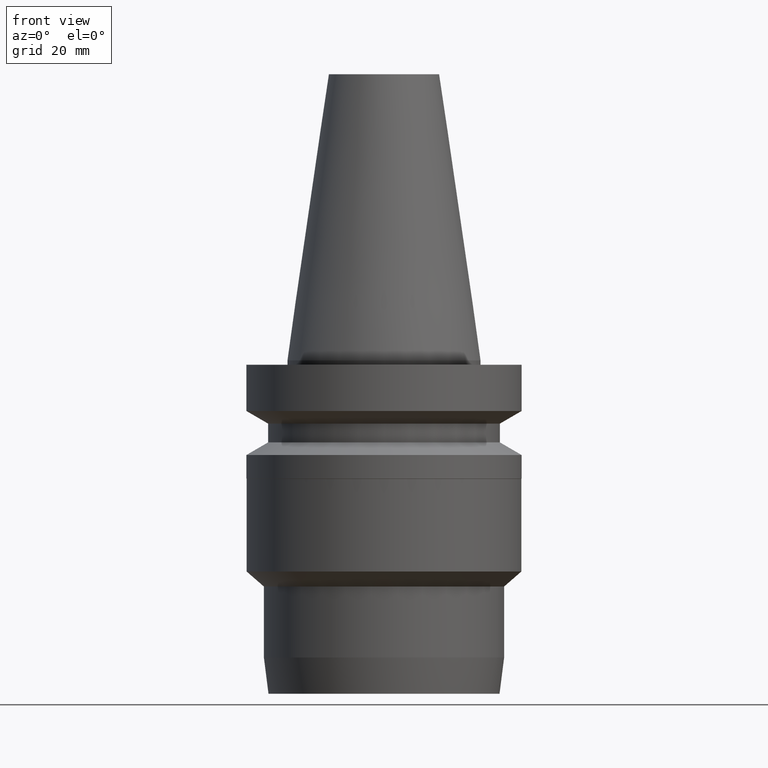
[diagram: clean part render]
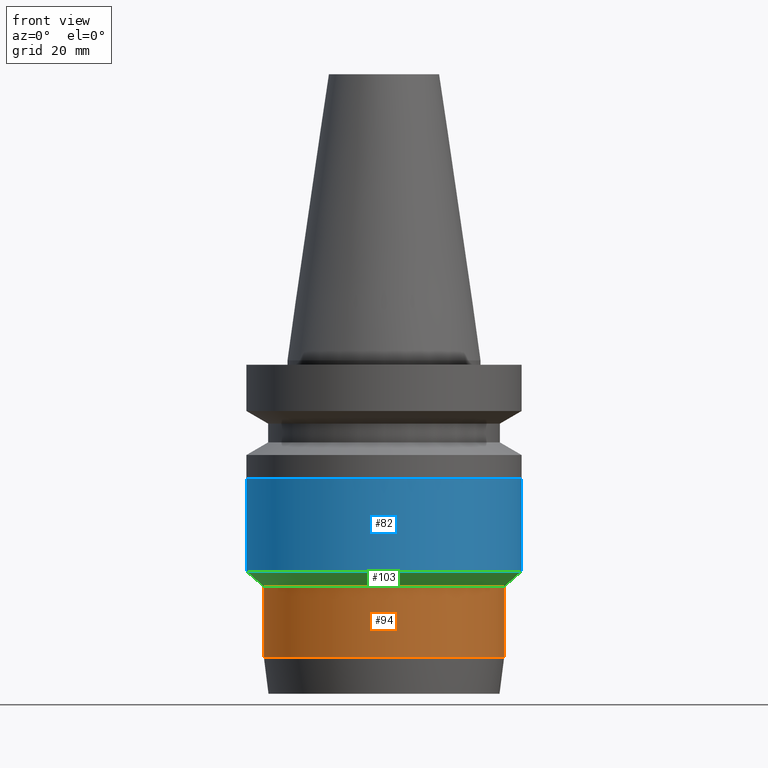
[diagram: same view with three faces highlighted in distinct colors, each labeled with its STEP entity id]
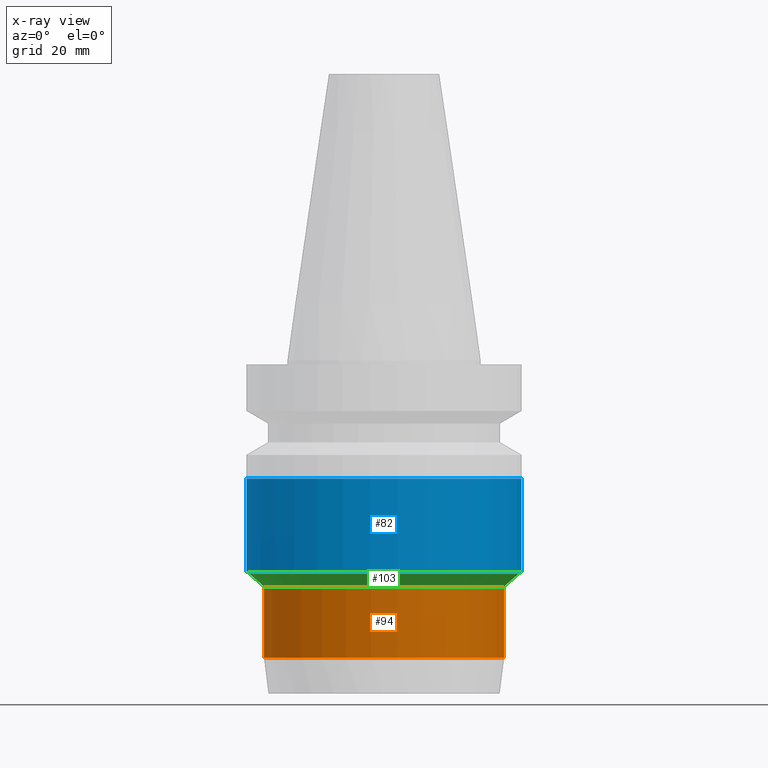
[diagram: x-ray of the same camera — body ghosted, the three highlighted faces saturated]
A machine part, front view with three faces highlighted in distinct colors.
The next image is the same camera in x-ray (body ghosted, the three faces saturated) — at least one of them is partly hidden behind the body in this view.
Their STEP definitions:

[orange] entity #94 — the highlighted cylindrical surface (bore or boss wall) has radius 27.5 mm, axis along (0, -0, -1).
#94=ADVANCED_FACE('Unnamed[1]',(#207,#208),#209,.T.);
#100=EDGE_CURVE('Unnamed[1]',#217,#217,#218,.T.);
#128=EDGE_CURVE('Unnamed[1]',#261,#261,#262,.T.);
#207=FACE_BOUND('',#346,.T.);
#208=FACE_BOUND('',#347,.T.);
#209=CYLINDRICAL_SURFACE('',#348,27.4999999999893);
#217=VERTEX_POINT('',#359);
#218=CIRCLE('',#360,27.4999999999892);
#261=VERTEX_POINT('',#414);
#262=CIRCLE('',#415,27.4999999999895);
#346=EDGE_LOOP('',(#484));
#347=EDGE_LOOP('',(#485));
#348=AXIS2_PLACEMENT_3D('',#486,#487,#488);
#359=CARTESIAN_POINT('',(3.16527234737427E-015,27.4999999999892,-51.6928203230197));
#360=AXIS2_PLACEMENT_3D('',#495,#496,#497);
#414=CARTESIAN_POINT('',(4.15827346294183E-015,27.4999999999895,-67.9097592193436));
#415=AXIS2_PLACEMENT_3D('',#545,#546,#547);
#484=ORIENTED_EDGE('',*,*,#128,.F.);
#485=ORIENTED_EDGE('',*,*,#100,.T.);
#486=CARTESIAN_POINT('',(3.66177290515805E-015,-6.49489108410238E-015,-59.8012897711816));
#487=DIRECTION('',(6.12323399573677E-017,-6.62934875621771E-016,-1.0));
#488=DIRECTION('',(3.57659009428972E-032,1.0,-6.62934875621771E-016));
#495=CARTESIAN_POINT('',(3.16527234737427E-015,-1.11950389900233E-015,-51.6928203230197));
#496=DIRECTION('',(6.12323399573677E-017,-6.62934875621775E-016,-1.0));
#497=DIRECTION('',(3.57659009428974E-032,1.0,-6.62934875621775E-016));
#545=CARTESIAN_POINT('',(4.15827346294183E-015,-1.18702782692024E-014,-67.9097592193436));
#546=DIRECTION('',(6.12323399573677E-017,-6.62934875621768E-016,-1.0));
#547=DIRECTION('',(3.5765900942897E-032,1.0,-6.62934875621768E-016));

[blue] entity #82 — the highlighted cylindrical surface (bore or boss wall) has radius 31.45 mm, axis along (0, -0, -1).
#73=EDGE_CURVE('Unnamed[1]',#175,#175,#176,.T.);
#82=ADVANCED_FACE('Unnamed[1]',(#188,#189),#190,.T.);
#114=EDGE_CURVE('Unnamed[1]',#239,#239,#240,.T.);
#175=VERTEX_POINT('',#306);
#176=CIRCLE('',#307,31.4499999999729);
#188=FACE_BOUND('',#322,.T.);
#189=FACE_BOUND('',#323,.T.);
#190=CYLINDRICAL_SURFACE('',#324,31.4499999999873);
#239=VERTEX_POINT('',#387);
#240=CIRCLE('',#388,31.4500000000017);
#306=CARTESIAN_POINT('',(1.65633479584536E-015,31.4499999999729,-27.0499999999765));
#307=AXIS2_PLACEMENT_3D('',#448,#449,#450);
#322=EDGE_LOOP('',(#463));
#323=EDGE_LOOP('',(#464));
#324=AXIS2_PLACEMENT_3D('',#465,#466,#467);
#387=CARTESIAN_POINT('',(2.95492492502778E-015,31.4500000000017,-48.2575862213516));
#388=AXIS2_PLACEMENT_3D('',#519,#520,#521);
#448=CARTESIAN_POINT('',(1.65633479584536E-015,1.52170811268237E-014,-27.0499999999765));
#449=DIRECTION('',(6.12323399573676E-017,-6.62934875621734E-016,-1.0));
#450=DIRECTION('',(3.57659009429022E-032,1.0,-6.62934875621734E-016));
#463=ORIENTED_EDGE('',*,*,#114,.F.);
#464=ORIENTED_EDGE('',*,*,#73,.T.);
#465=CARTESIAN_POINT('',(2.30562986043657E-015,8.18745685987115E-015,-37.6537931106641));
#466=DIRECTION('',(6.12323399573677E-017,-6.62934875621739E-016,-1.0));
#467=DIRECTION('',(3.57659009428973E-032,1.0,-6.62934875621739E-016));
#519=CARTESIAN_POINT('',(2.95492492502778E-015,1.15783259291865E-015,-48.2575862213516));
#520=DIRECTION('',(6.12323399573676E-017,-6.62934875621744E-016,-1.0));
#521=DIRECTION('',(3.57659009429037E-032,1.0,-6.62934875621744E-016));

[green] entity #103 — the highlighted conical surface has half-angle 48.987 deg.
#100=EDGE_CURVE('Unnamed[1]',#217,#217,#218,.T.);
#103=ADVANCED_FACE('Unnamed[1]',(#221,#222),#223,.T.);
#114=EDGE_CURVE('Unnamed[1]',#239,#239,#240,.T.);
#217=VERTEX_POINT('',#359);
#218=CIRCLE('',#360,27.4999999999892);
#221=FACE_BOUND('',#364,.T.);
#222=FACE_BOUND('',#365,.T.);
#223=CONICAL_SURFACE('',#366,29.4749999999954,0.854987653870736);
#239=VERTEX_POINT('',#387);
#240=CIRCLE('',#388,31.4500000000017);
#359=CARTESIAN_POINT('',(3.16527234737427E-015,27.4999999999892,-51.6928203230197));
#360=AXIS2_PLACEMENT_3D('',#495,#496,#497);
#364=EDGE_LOOP('',(#499));
#365=EDGE_LOOP('',(#500));
#366=AXIS2_PLACEMENT_3D('',#501,#502,#503);
#387=CARTESIAN_POINT('',(2.95492492502778E-015,31.4500000000017,-48.2575862213516));
#388=AXIS2_PLACEMENT_3D('',#519,#520,#521);
#495=CARTESIAN_POINT('',(3.16527234737427E-015,-1.11950389900233E-015,-51.6928203230197));
#496=DIRECTION('',(6.12323399573677E-017,-6.62934875621775E-016,-1.0));
#497=DIRECTION('',(3.57659009428974E-032,1.0,-6.62934875621775E-016));
#499=ORIENTED_EDGE('',*,*,#100,.F.);
#500=ORIENTED_EDGE('',*,*,#114,.T.);
#501=CARTESIAN_POINT('',(3.06009863620102E-015,1.91643469581588E-017,-49.9752032721857));
#502=DIRECTION('',(-6.12323399573676E-017,6.62934875621786E-016,1.0));
#503=DIRECTION('',(3.57659009428993E-032,1.0,-6.62934875621786E-016));
#519=CARTESIAN_POINT('',(2.95492492502778E-015,1.15783259291865E-015,-48.2575862213516));
#520=DIRECTION('',(6.12323399573676E-017,-6.62934875621744E-016,-1.0));
#521=DIRECTION('',(3.57659009429037E-032,1.0,-6.62934875621744E-016));